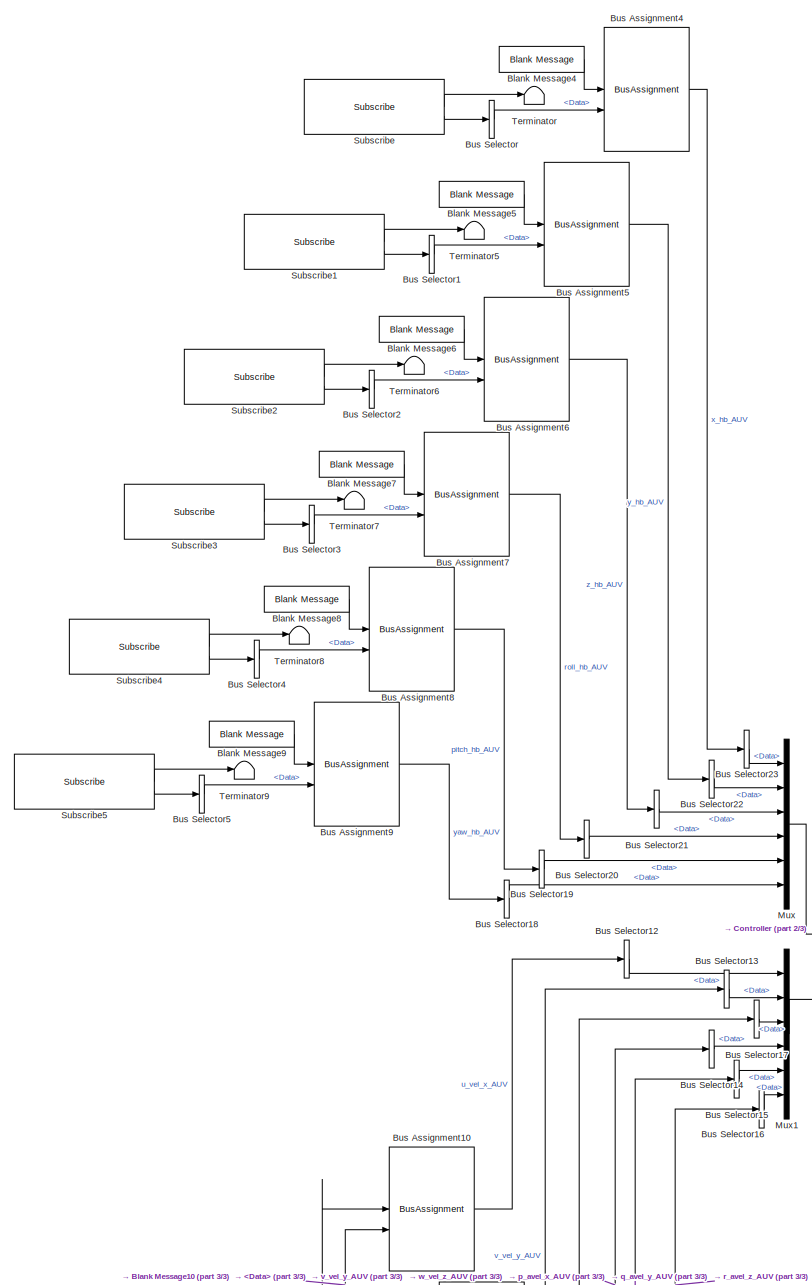
[diagram: root canvas - part 1/3, top left region]
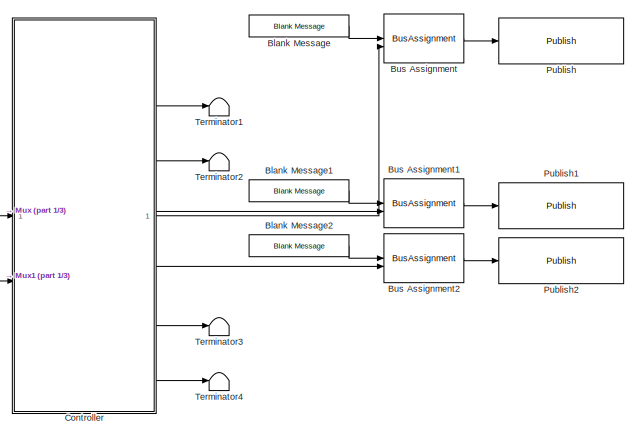
[diagram: root canvas - part 2/3, middle right region]
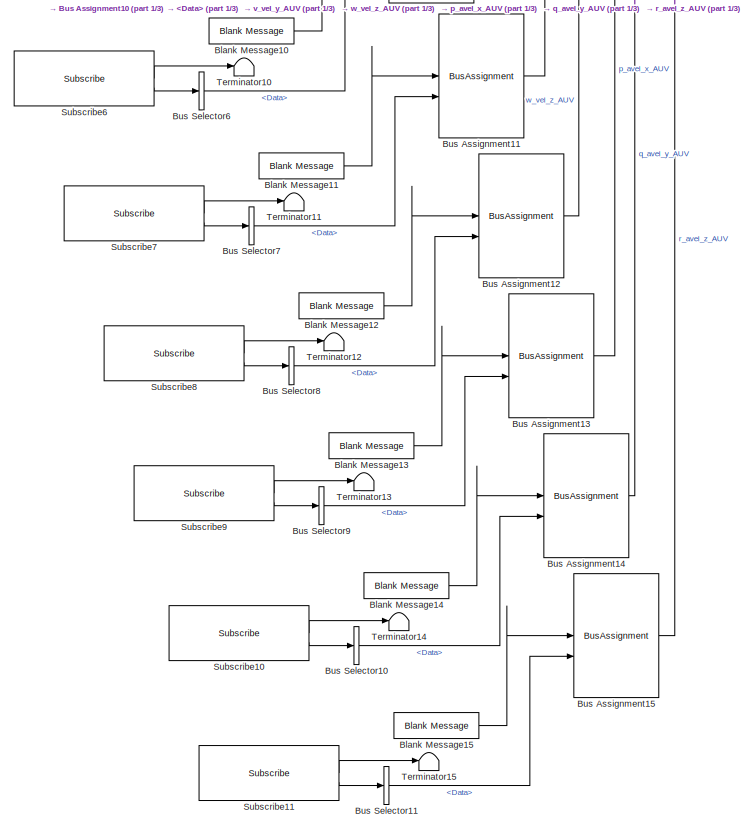
[diagram: root canvas - part 3/3, bottom left region]
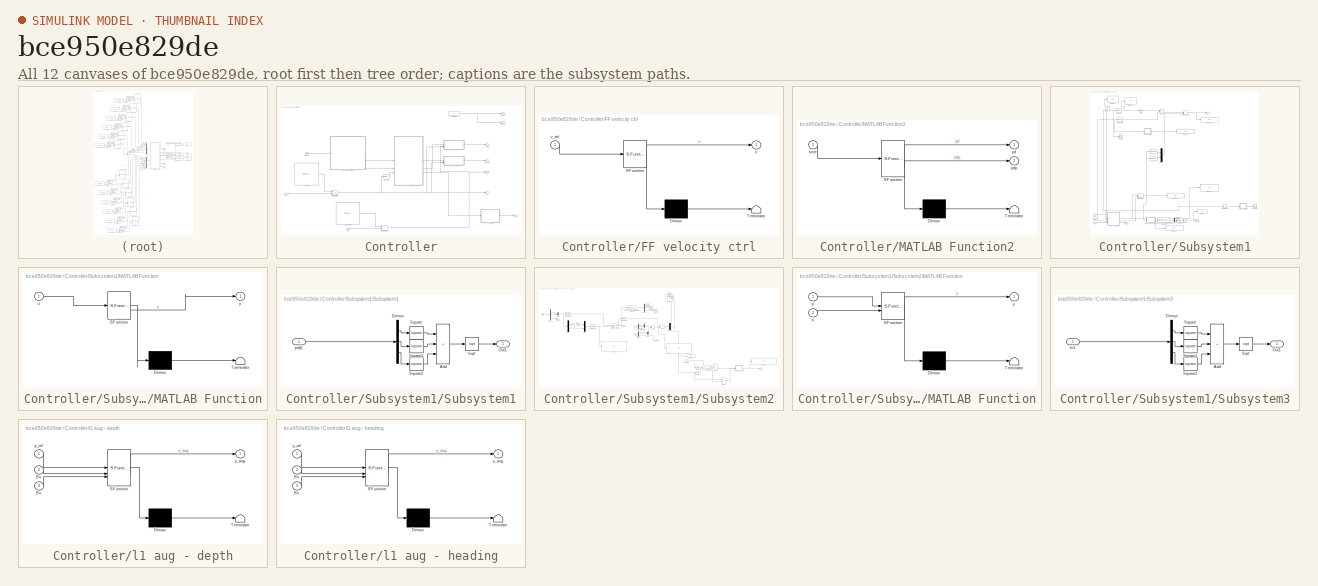
[diagram: thumbnail index - all 12 canvases of the model, root first then tree order]
MODEL slx_bce950e829de
KIND model
CONFIG AbsTol = auto
CONFIG EnableMultiTasking = off
CONFIG FixedStep = 0.05
CONFIG MaxStep = auto
CONFIG MinStep = auto
CONFIG RelTol = 1e-3
CONFIG SampleTimeConstraint = Unconstrained
CONFIG SolverName = FixedStepAuto
CONFIG StartTime = 0.0
CONFIG StopFcn = save('testdata')
CONFIG StopTime = Tf
BLOCK [Reference] Blank Message  REF=robotlib/Blank Message
  LibrarySourceBlock = roslib/ROS/Blank Message
  SourceBlock = robotlib/Blank Message
  SourceType = ROS Blank Message
BLOCK [Reference] Blank Message1  REF=robotlib/Blank Message
  LibrarySourceBlock = roslib/ROS/Blank Message
  SourceBlock = robotlib/Blank Message
  SourceType = ROS Blank Message
BLOCK [Reference] Blank Message10  REF=robotlib/Blank Message
  LibrarySourceBlock = roslib/ROS/Blank Message
  SourceBlock = robotlib/Blank Message
  SourceType = ROS Blank Message
BLOCK [Reference] Blank Message11  REF=robotlib/Blank Message
  LibrarySourceBlock = roslib/ROS/Blank Message
  SourceBlock = robotlib/Blank Message
  SourceType = ROS Blank Message
BLOCK [Reference] Blank Message12  REF=robotlib/Blank Message
  LibrarySourceBlock = roslib/ROS/Blank Message
  SourceBlock = robotlib/Blank Message
  SourceType = ROS Blank Message
BLOCK [Reference] Blank Message13  REF=robotlib/Blank Message
  LibrarySourceBlock = roslib/ROS/Blank Message
  SourceBlock = robotlib/Blank Message
  SourceType = ROS Blank Message
BLOCK [Reference] Blank Message14  REF=robotlib/Blank Message
  LibrarySourceBlock = roslib/ROS/Blank Message
  SourceBlock = robotlib/Blank Message
  SourceType = ROS Blank Message
BLOCK [Reference] Blank Message15  REF=robotlib/Blank Message
  LibrarySourceBlock = roslib/ROS/Blank Message
  SourceBlock = robotlib/Blank Message
  SourceType = ROS Blank Message
BLOCK [Reference] Blank Message2  REF=robotlib/Blank Message
  LibrarySourceBlock = roslib/ROS/Blank Message
  SourceBlock = robotlib/Blank Message
  SourceType = ROS Blank Message
BLOCK [Reference] Blank Message4  REF=robotlib/Blank Message
  LibrarySourceBlock = roslib/ROS/Blank Message
  SourceBlock = robotlib/Blank Message
  SourceType = ROS Blank Message
BLOCK [Reference] Blank Message5  REF=robotlib/Blank Message
  LibrarySourceBlock = roslib/ROS/Blank Message
  SourceBlock = robotlib/Blank Message
  SourceType = ROS Blank Message
BLOCK [Reference] Blank Message6  REF=robotlib/Blank Message
  LibrarySourceBlock = roslib/ROS/Blank Message
  SourceBlock = robotlib/Blank Message
  SourceType = ROS Blank Message
BLOCK [Reference] Blank Message7  REF=robotlib/Blank Message
  LibrarySourceBlock = roslib/ROS/Blank Message
  SourceBlock = robotlib/Blank Message
  SourceType = ROS Blank Message
BLOCK [Reference] Blank Message8  REF=robotlib/Blank Message
  LibrarySourceBlock = roslib/ROS/Blank Message
  SourceBlock = robotlib/Blank Message
  SourceType = ROS Blank Message
BLOCK [Reference] Blank Message9  REF=robotlib/Blank Message
  LibrarySourceBlock = roslib/ROS/Blank Message
  SourceBlock = robotlib/Blank Message
  SourceType = ROS Blank Message
BLOCK [BusAssignment] Bus Assignment
  AssignedSignals = Data
BLOCK [BusAssignment] Bus Assignment1
  AssignedSignals = Data
BLOCK [BusAssignment] Bus Assignment10
  AssignedSignals = Data
BLOCK [BusAssignment] Bus Assignment11
  AssignedSignals = Data
BLOCK [BusAssignment] Bus Assignment12
  AssignedSignals = Data
BLOCK [BusAssignment] Bus Assignment13
  AssignedSignals = Data
BLOCK [BusAssignment] Bus Assignment14
  AssignedSignals = Data
BLOCK [BusAssignment] Bus Assignment15
  AssignedSignals = Data
BLOCK [BusAssignment] Bus Assignment2
  AssignedSignals = Data
BLOCK [BusAssignment] Bus Assignment4
  AssignedSignals = Data
BLOCK [BusAssignment] Bus Assignment5
  AssignedSignals = Data
BLOCK [BusAssignment] Bus Assignment6
  AssignedSignals = Data
BLOCK [BusAssignment] Bus Assignment7
  AssignedSignals = Data
BLOCK [BusAssignment] Bus Assignment8
  AssignedSignals = Data
BLOCK [BusAssignment] Bus Assignment9
  AssignedSignals = Data
BLOCK [BusSelector] Bus Selector
  OutputSignals = Data
BLOCK [BusSelector] Bus Selector1
  OutputSignals = Data
BLOCK [BusSelector] Bus Selector10
  OutputSignals = Data
BLOCK [BusSelector] Bus Selector11
  OutputSignals = Data
BLOCK [BusSelector] Bus Selector12
  OutputSignals = Data
BLOCK [BusSelector] Bus Selector13
  OutputSignals = Data
BLOCK [BusSelector] Bus Selector14
  OutputSignals = Data
BLOCK [BusSelector] Bus Selector15
  OutputSignals = Data
BLOCK [BusSelector] Bus Selector16
  OutputSignals = Data
BLOCK [BusSelector] Bus Selector17
  OutputSignals = Data
BLOCK [BusSelector] Bus Selector18
  OutputSignals = Data
BLOCK [BusSelector] Bus Selector19
  OutputSignals = Data
BLOCK [BusSelector] Bus Selector2
  OutputSignals = Data
BLOCK [BusSelector] Bus Selector20
  OutputSignals = Data
BLOCK [BusSelector] Bus Selector21
  OutputSignals = Data
BLOCK [BusSelector] Bus Selector22
  OutputSignals = Data
BLOCK [BusSelector] Bus Selector23
  OutputSignals = Data
BLOCK [BusSelector] Bus Selector3
  OutputSignals = Data
BLOCK [BusSelector] Bus Selector4
  OutputSignals = Data
BLOCK [BusSelector] Bus Selector5
  OutputSignals = Data
BLOCK [BusSelector] Bus Selector6
  OutputSignals = Data
BLOCK [BusSelector] Bus Selector7
  OutputSignals = Data
BLOCK [BusSelector] Bus Selector8
  OutputSignals = Data
BLOCK [BusSelector] Bus Selector9
  OutputSignals = Data
BLOCK [SubSystem] Controller
BLOCK [Inport] Controller/Bv
  Port = 2
BLOCK [Inport] Controller/Bx
BLOCK [Clock] Controller/Clock
BLOCK [Constant] Controller/Constant
  Value = [-1 0 0 0 0 0; 0 -1 0 0 0 0; 0 0 1 0 0 0; 0 0 0 1 0 0; 0 0 0 0 1 0; 0 0 0 0 0 1]
BLOCK [Constant] Controller/Constant1
  Value = 0
BLOCK [Constant] Controller/Constant2
  Value = [-1 0 0 0 0 0; 0 -1 0 0 0 0; 0 0 1 0 0 0; 0 0 0 1 0 0; 0 0 0 0 1 0; 0 0 0 0 0 1]
BLOCK [SubSystem] Controller/FF velocity ctrl
  ErrorFcn = Stateflow.Translate.translate
  PermitHierarchicalResolution = ExplicitOnly
  SFBlockType = MATLAB Function
  TreatAsAtomicUnit = on
BLOCK [Demux] Controller/FF velocity ctrl/ Demux 
  Outputs = 1
BLOCK [S-Function] Controller/FF velocity ctrl/ SFunction 
  EnableBusSupport = on
  FunctionName = sf_sfun
  PortCounts = [1 2]
  SFcnIsStateOwnerBlock = off
  SFunctionDeploymentMode = off
  Tag = Stateflow S-Function 78
BLOCK [Terminator] Controller/FF velocity ctrl/ Terminator 
BLOCK [Outport] Controller/FF velocity ctrl/n
BLOCK [Inport] Controller/FF velocity ctrl/v_ref
BLOCK [SubSystem] Controller/MATLAB Function2
  ErrorFcn = Stateflow.Translate.translate
  PermitHierarchicalResolution = ExplicitOnly
  SFBlockType = MATLAB Function
  TreatAsAtomicUnit = on
BLOCK [Demux] Controller/MATLAB Function2/ Demux 
  Outputs = 1
BLOCK [S-Function] Controller/MATLAB Function2/ SFunction 
  EnableBusSupport = on
  FunctionName = sf_sfun
  Parameters = Cp,Cp_prime,Tf
  PortCounts = [1 3]
  SFcnIsStateOwnerBlock = off
  SFunctionDeploymentMode = off
  Tag = Stateflow S-Function 5
BLOCK [Terminator] Controller/MATLAB Function2/ Terminator 
BLOCK [Outport] Controller/MATLAB Function2/pd
BLOCK [Outport] Controller/MATLAB Function2/pdp
  Port = 2
BLOCK [Inport] Controller/MATLAB Function2/time
BLOCK [Product] Controller/Matrix Multiply
  Multiplication = Matrix(*)
BLOCK [Product] Controller/Matrix Multiply1
  Multiplication = Matrix(*)
BLOCK [Selector] Controller/Selector1
  IndexOptions = Index vector (dialog)
  Indices = [1 2 3]
  InputPortWidth = 6
  OutputSizes = 1
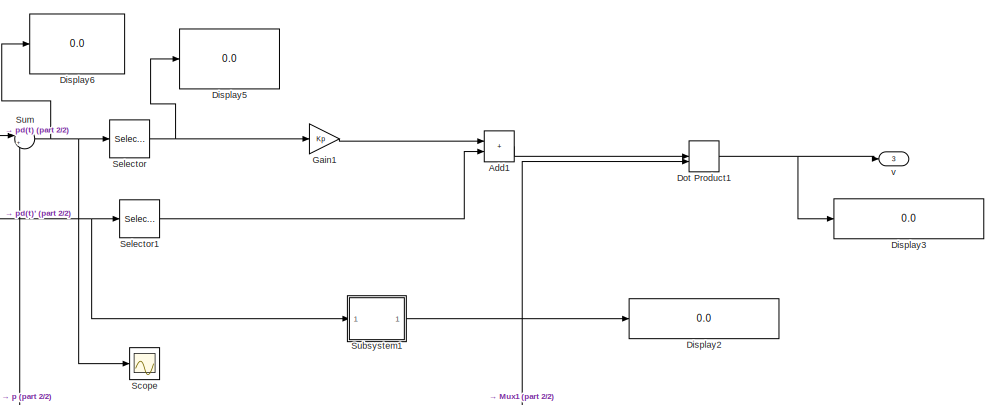
[diagram: Controller/Subsystem1 - part 1/2, top center region]
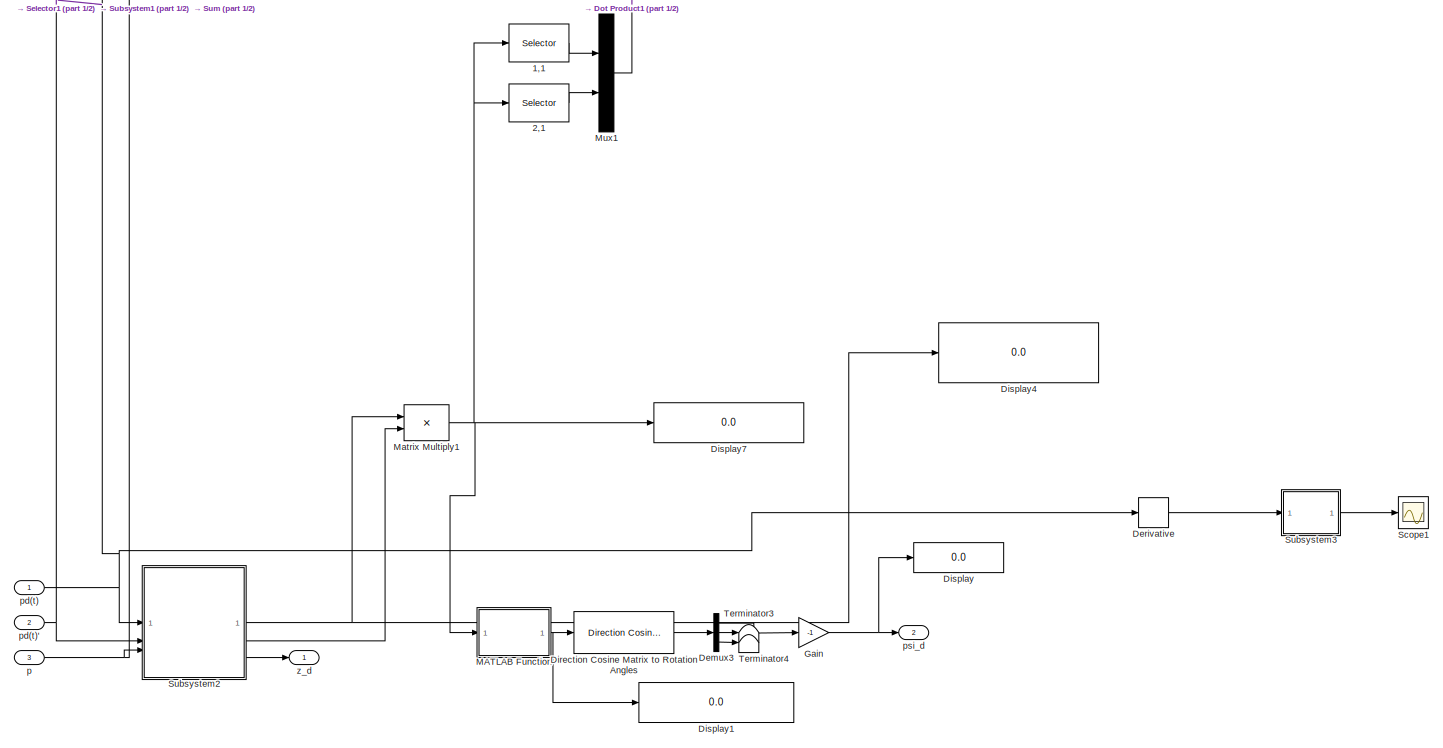
[diagram: Controller/Subsystem1 - part 2/2, full width, bottom band]
BLOCK [SubSystem] Controller/Subsystem1
BLOCK [Selector] Controller/Subsystem1/1,1
  IndexOptions = Index vector (dialog),Index vector (dialog)
  Indices = 1,1
  InputPortWidth = 3
  NumberOfDimensions = 2
  OutputSizes = 1,1
BLOCK [Selector] Controller/Subsystem1/2,1
  IndexOptions = Index vector (dialog),Index vector (dialog)
  Indices = 2,1
  InputPortWidth = 3
  NumberOfDimensions = 2
  OutputSizes = 1,1
BLOCK [Sum] Controller/Subsystem1/Add1
  IconShape = rectangular
BLOCK [Demux] Controller/Subsystem1/Demux3
  Outputs = 3
BLOCK [Derivative] Controller/Subsystem1/Derivative
BLOCK [Reference] Controller/Subsystem1/Direction Cosine Matrix to Rotation Angles  REF=sharedtransform/Direction Cosine Matrix
to Rotation Angles
  AttributesFormatString = Rotation Order: %<rotationOrder>
  LibrarySourceBlock = aerolibtransform2/Direction Cosine Matrix\nto Rotation Angles
  SourceBlock = sharedtransform/Direction Cosine Matrix\nto Rotation Angles
  SourceType = DCM2Ang
BLOCK [Display] Controller/Subsystem1/Display
  Decimation = 1
BLOCK [Display] Controller/Subsystem1/Display1
  Decimation = 1
BLOCK [Display] Controller/Subsystem1/Display2
  Decimation = 1
BLOCK [Display] Controller/Subsystem1/Display3
  Decimation = 1
BLOCK [Display] Controller/Subsystem1/Display4
  Decimation = 1
BLOCK [Display] Controller/Subsystem1/Display5
  Decimation = 1
BLOCK [Display] Controller/Subsystem1/Display6
  Decimation = 1
BLOCK [Display] Controller/Subsystem1/Display7
  Decimation = 1
BLOCK [DotProduct] Controller/Subsystem1/Dot Product1
  OutDataTypeStr = Inherit: Inherit via internal rule
BLOCK [Gain] Controller/Subsystem1/Gain
  Gain = -1
BLOCK [Gain] Controller/Subsystem1/Gain1
  Gain = Kp
BLOCK [SubSystem] Controller/Subsystem1/MATLAB Function
  ErrorFcn = Stateflow.Translate.translate
  LibrarySourceBlock = simulink/User-Defined\nFunctions/MATLAB Function
  PermitHierarchicalResolution = ExplicitOnly
  SFBlockType = MATLAB Function
  TreatAsAtomicUnit = on
BLOCK [Demux] Controller/Subsystem1/MATLAB Function/ Demux 
  Outputs = 1
BLOCK [S-Function] Controller/Subsystem1/MATLAB Function/ SFunction 
  EnableBusSupport = on
  FunctionName = sf_sfun
  PortCounts = [1 2]
  SFcnIsStateOwnerBlock = off
  SFunctionDeploymentMode = off
  Tag = Stateflow S-Function 2
BLOCK [Terminator] Controller/Subsystem1/MATLAB Function/ Terminator 
BLOCK [Inport] Controller/Subsystem1/MATLAB Function/u
BLOCK [Outport] Controller/Subsystem1/MATLAB Function/y
BLOCK [Product] Controller/Subsystem1/Matrix Multiply1
  Multiplication = Matrix(*)
BLOCK [Mux] Controller/Subsystem1/Mux1
  DisplayOption = bar
  Inputs = 2
BLOCK [Scope] Controller/Subsystem1/Scope
  Floating = off
  NumInputPorts = 1
  ScopeSpecificationString = Simulink.scopes.TimeScopeBlockCfg('CurrentConfiguration', extmgr.ConfigurationSet(extmgr.Configuration('Core','General UI',true),extmgr.Configuration('Core','Source UI',true),extmgr.Configuration('Sources','WiredSimulink',true,'DataLoggingVariableName','ScopeData1'),extmgr.Configuration('Visuals','Time Domain',true,'SerializedDisplays',{struct('MinYLimReal','-45.28038','MaxYLimReal','27.25608','YL...<+1409ch>
BLOCK [Scope] Controller/Subsystem1/Scope1
  Floating = off
  NumInputPorts = 1
  ScopeSpecificationString = Simulink.scopes.TimeScopeBlockCfg('CurrentConfiguration', extmgr.ConfigurationSet(extmgr.Configuration('Core','General UI',true),extmgr.Configuration('Core','Source UI',true),extmgr.Configuration('Sources','WiredSimulink',true,'DataLoggingVariableName','ScopeData3'),extmgr.Configuration('Visuals','Time Domain',true,'SerializedDisplays',{struct('MinYLimReal','-0.625','MaxYLimReal','5.625','YLabelRe...<+1386ch>
BLOCK [Selector] Controller/Subsystem1/Selector
  IndexOptions = Index vector (dialog)
  Indices = [1 2]
  InputPortWidth = 3
  OutputSizes = 1
BLOCK [Selector] Controller/Subsystem1/Selector1
  IndexOptions = Index vector (dialog)
  Indices = [1 2]
  InputPortWidth = 3
  OutputSizes = 1
BLOCK [SubSystem] Controller/Subsystem1/Subsystem1
BLOCK [Sum] Controller/Subsystem1/Subsystem1/Add
  IconShape = rectangular
  Inputs = +++
BLOCK [Demux] Controller/Subsystem1/Subsystem1/Demux
  Outputs = 3
BLOCK [Outport] Controller/Subsystem1/Subsystem1/Out1
BLOCK [Sqrt] Controller/Subsystem1/Subsystem1/Sqrt
BLOCK [Math] Controller/Subsystem1/Subsystem1/Square
  Operator = square
BLOCK [Math] Controller/Subsystem1/Subsystem1/Square1
  Operator = square
BLOCK [Math] Controller/Subsystem1/Subsystem1/Square2
  Operator = square
BLOCK [Inport] Controller/Subsystem1/Subsystem1/pd(t)'
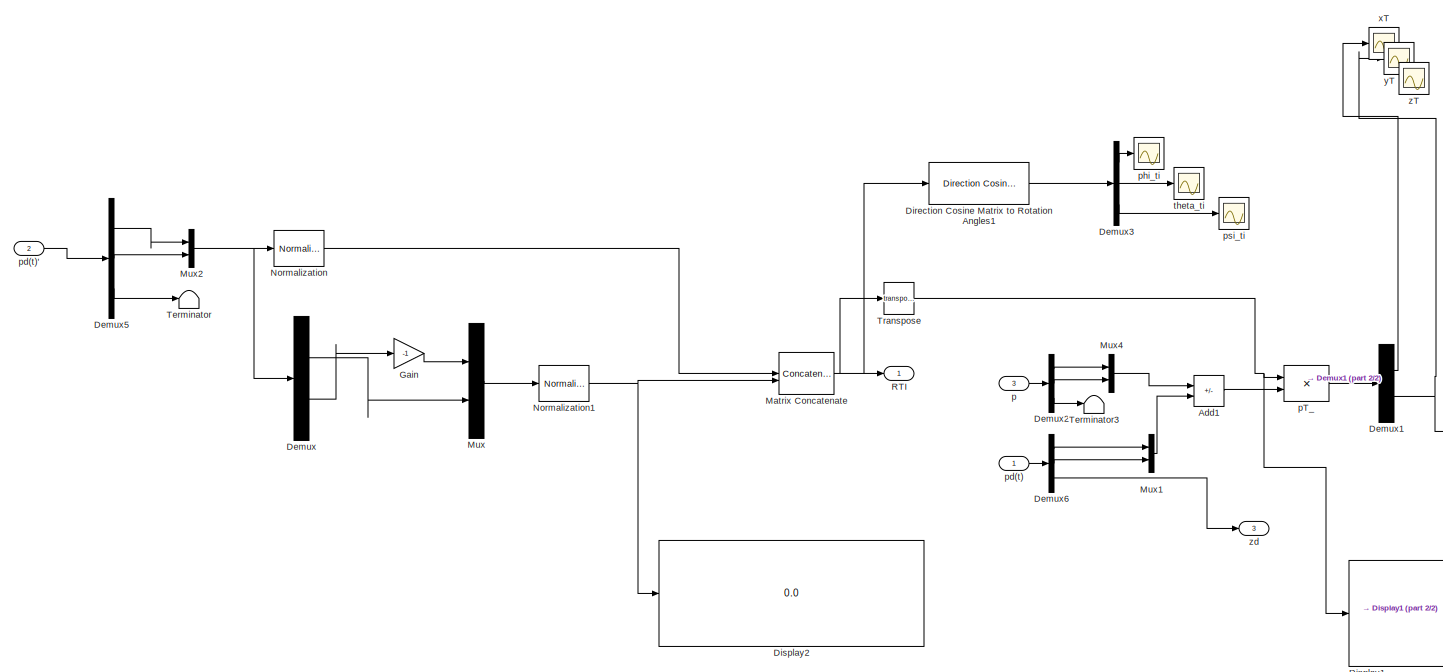
[diagram: Controller/Subsystem1/Subsystem2 - part 1/2, middle left region]
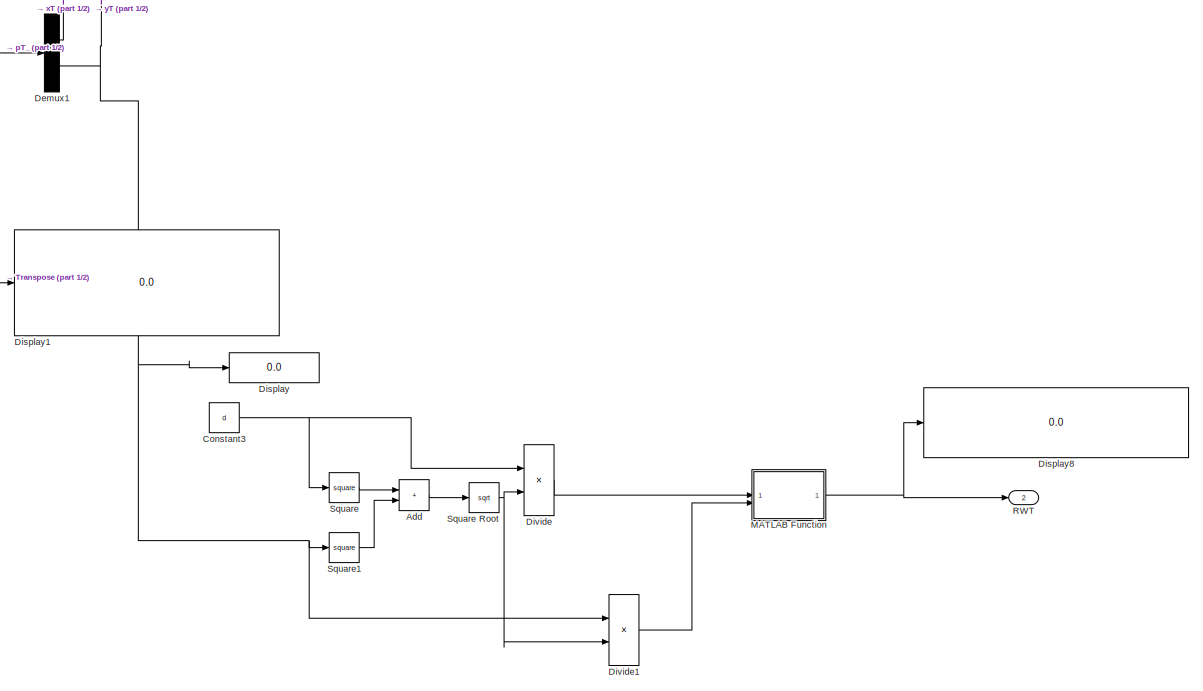
[diagram: Controller/Subsystem1/Subsystem2 - part 2/2, middle right region]
BLOCK [SubSystem] Controller/Subsystem1/Subsystem2
BLOCK [Sum] Controller/Subsystem1/Subsystem2/Add
  IconShape = rectangular
BLOCK [Sum] Controller/Subsystem1/Subsystem2/Add1
  IconShape = rectangular
  Inputs = +-
BLOCK [Constant] Controller/Subsystem1/Subsystem2/Constant3
  Value = d
BLOCK [Demux] Controller/Subsystem1/Subsystem2/Demux
  Outputs = 2
BLOCK [Demux] Controller/Subsystem1/Subsystem2/Demux1
  Outputs = 2
BLOCK [Demux] Controller/Subsystem1/Subsystem2/Demux2
  Outputs = 3
BLOCK [Demux] Controller/Subsystem1/Subsystem2/Demux3
  Commented = on
  Outputs = 3
BLOCK [Demux] Controller/Subsystem1/Subsystem2/Demux5
  Outputs = 3
BLOCK [Demux] Controller/Subsystem1/Subsystem2/Demux6
  Outputs = 3
BLOCK [Reference] Controller/Subsystem1/Subsystem2/Direction Cosine Matrix to Rotation Angles1  REF=sharedtransform/Direction Cosine Matrix
to Rotation Angles
  AttributesFormatString = Rotation Order: %<rotationOrder>
  Commented = on
  SourceBlock = sharedtransform/Direction Cosine Matrix\nto Rotation Angles
  SourceType = DCM2Ang
BLOCK [Display] Controller/Subsystem1/Subsystem2/Display
  Decimation = 1
BLOCK [Display] Controller/Subsystem1/Subsystem2/Display1
  Decimation = 1
BLOCK [Display] Controller/Subsystem1/Subsystem2/Display2
  Decimation = 1
BLOCK [Display] Controller/Subsystem1/Subsystem2/Display8
  Decimation = 1
BLOCK [Product] Controller/Subsystem1/Subsystem2/Divide
  Inputs = */
BLOCK [Product] Controller/Subsystem1/Subsystem2/Divide1
  Inputs = */
BLOCK [Gain] Controller/Subsystem1/Subsystem2/Gain
  Gain = -1
BLOCK [SubSystem] Controller/Subsystem1/Subsystem2/MATLAB Function
  ErrorFcn = Stateflow.Translate.translate
  PermitHierarchicalResolution = ExplicitOnly
  SFBlockType = MATLAB Function
  TreatAsAtomicUnit = on
BLOCK [Demux] Controller/Subsystem1/Subsystem2/MATLAB Function/ Demux 
  Outputs = 1
BLOCK [S-Function] Controller/Subsystem1/Subsystem2/MATLAB Function/ SFunction 
  EnableBusSupport = on
  FunctionName = sf_sfun
  PortCounts = [2 2]
  SFcnIsStateOwnerBlock = off
  SFunctionDeploymentMode = off
  Tag = Stateflow S-Function 9
BLOCK [Terminator] Controller/Subsystem1/Subsystem2/MATLAB Function/ Terminator 
BLOCK [Inport] Controller/Subsystem1/Subsystem2/MATLAB Function/a
BLOCK [Inport] Controller/Subsystem1/Subsystem2/MATLAB Function/b
  Port = 2
BLOCK [Outport] Controller/Subsystem1/Subsystem2/MATLAB Function/y
BLOCK [Concatenate] Controller/Subsystem1/Subsystem2/Matrix Concatenate
  ConcatenateDimension = 2
  Mode = Multidimensional array
BLOCK [Mux] Controller/Subsystem1/Subsystem2/Mux
  DisplayOption = bar
  Inputs = 2
BLOCK [Mux] Controller/Subsystem1/Subsystem2/Mux1
  DisplayOption = bar
  Inputs = 2
BLOCK [Mux] Controller/Subsystem1/Subsystem2/Mux2
  DisplayOption = bar
  Inputs = 2
BLOCK [Mux] Controller/Subsystem1/Subsystem2/Mux4
  DisplayOption = bar
  Inputs = 2
BLOCK [Reference] Controller/Subsystem1/Subsystem2/Normalization  REF=dspmathops/Normalization
  SourceBlock = dspmathops/Normalization
  SourceType = Normalization
BLOCK [Reference] Controller/Subsystem1/Subsystem2/Normalization1  REF=dspmathops/Normalization
  SourceBlock = dspmathops/Normalization
  SourceType = Normalization
BLOCK [Outport] Controller/Subsystem1/Subsystem2/RTI
BLOCK [Outport] Controller/Subsystem1/Subsystem2/RWT
  Port = 2
BLOCK [Math] Controller/Subsystem1/Subsystem2/Square
  Operator = square
BLOCK [Sqrt] Controller/Subsystem1/Subsystem2/Square Root
BLOCK [Math] Controller/Subsystem1/Subsystem2/Square1
  Operator = square
BLOCK [Terminator] Controller/Subsystem1/Subsystem2/Terminator
BLOCK [Terminator] Controller/Subsystem1/Subsystem2/Terminator3
BLOCK [Math] Controller/Subsystem1/Subsystem2/Transpose
  Operator = transpose
BLOCK [Inport] Controller/Subsystem1/Subsystem2/p
  Port = 3
BLOCK [Product] Controller/Subsystem1/Subsystem2/pT_
  Multiplication = Matrix(*)
BLOCK [Inport] Controller/Subsystem1/Subsystem2/pd(t)
BLOCK [Inport] Controller/Subsystem1/Subsystem2/pd(t)'
  Port = 2
BLOCK [Scope] Controller/Subsystem1/Subsystem2/phi_ti
  Commented = on
  Floating = off
  NumInputPorts = 1
  ScopeSpecificationString = Simulink.scopes.TimeScopeBlockCfg('CurrentConfiguration', extmgr.ConfigurationSet(extmgr.Configuration('Core','General UI',true),extmgr.Configuration('Core','Source UI',true),extmgr.Configuration('Sources','WiredSimulink',true,'DataLoggingVariableName','phi_ti','DataLogging',true,'DataLoggingSaveFormat','StructureWithTime'),extmgr.Configuration('Visuals','Time Domain',true,'SerializedDisplays',{st...<+1426ch>
BLOCK [Scope] Controller/Subsystem1/Subsystem2/psi_ti
  Commented = on
  Floating = off
  NumInputPorts = 1
  ScopeSpecificationString = Simulink.scopes.TimeScopeBlockCfg('CurrentConfiguration', extmgr.ConfigurationSet(extmgr.Configuration('Core','General UI',true),extmgr.Configuration('Core','Source UI',true),extmgr.Configuration('Sources','WiredSimulink',true,'DataLoggingVariableName','psi_ti','DataLogging',true,'DataLoggingSaveFormat','StructureWithTime'),extmgr.Configuration('Visuals','Time Domain',true,'SerializedDisplays',{st...<+1426ch>
BLOCK [Scope] Controller/Subsystem1/Subsystem2/theta_ti
  Commented = on
  Floating = off
  NumInputPorts = 1
  ScopeSpecificationString = Simulink.scopes.TimeScopeBlockCfg('CurrentConfiguration', extmgr.ConfigurationSet(extmgr.Configuration('Core','General UI',true),extmgr.Configuration('Core','Source UI',true),extmgr.Configuration('Sources','WiredSimulink',true,'DataLoggingVariableName','theta_ti','DataLogging',true,'DataLoggingSaveFormat','StructureWithTime'),extmgr.Configuration('Visuals','Time Domain',true,'SerializedDisplays',{...<+1428ch>
BLOCK [Scope] Controller/Subsystem1/Subsystem2/xT
  Floating = off
  NumInputPorts = 1
  ScopeSpecificationString = Simulink.scopes.TimeScopeBlockCfg('CurrentConfiguration', extmgr.ConfigurationSet(extmgr.Configuration('Core','General UI',true),extmgr.Configuration('Core','Source UI',true),extmgr.Configuration('Sources','WiredSimulink',true,'DataLoggingVariableName','xT','DataLogging',true,'DataLoggingSaveFormat','StructureWithTime'),extmgr.Configuration('Visuals','Time Domain',true,'SerializedDisplays',{struct...<+1452ch>
BLOCK [Scope] Controller/Subsystem1/Subsystem2/yT
  Floating = off
  NumInputPorts = 1
  ScopeSpecificationString = Simulink.scopes.TimeScopeBlockCfg('CurrentConfiguration', extmgr.ConfigurationSet(extmgr.Configuration('Core','General UI',true),extmgr.Configuration('Core','Source UI',true),extmgr.Configuration('Sources','WiredSimulink',true,'DataLoggingVariableName','yT','DataLogging',true,'DataLoggingSaveFormat','StructureWithTime'),extmgr.Configuration('Visuals','Time Domain',true,'SerializedDisplays',{struct...<+1488ch>
BLOCK [Scope] Controller/Subsystem1/Subsystem2/zT
  Commented = on
  Floating = off
  NumInputPorts = 1
  ScopeSpecificationString = Simulink.scopes.TimeScopeBlockCfg('CurrentConfiguration', extmgr.ConfigurationSet(extmgr.Configuration('Core','General UI',true),extmgr.Configuration('Core','Source UI',true),extmgr.Configuration('Sources','WiredSimulink',true,'DataLoggingVariableName','zT','DataLogging',true,'DataLoggingSaveFormat','StructureWithTime'),extmgr.Configuration('Visuals','Time Domain',true,'SerializedDisplays',{struct...<+1459ch>
BLOCK [Outport] Controller/Subsystem1/Subsystem2/zd
  Port = 3
BLOCK [SubSystem] Controller/Subsystem1/Subsystem3
BLOCK [Sum] Controller/Subsystem1/Subsystem3/Add
  IconShape = rectangular
  Inputs = +++
BLOCK [Demux] Controller/Subsystem1/Subsystem3/Demux
  Outputs = 3
BLOCK [Inport] Controller/Subsystem1/Subsystem3/In1
BLOCK [Outport] Controller/Subsystem1/Subsystem3/Out1
BLOCK [Sqrt] Controller/Subsystem1/Subsystem3/Sqrt
BLOCK [Math] Controller/Subsystem1/Subsystem3/Square
  Operator = square
BLOCK [Math] Controller/Subsystem1/Subsystem3/Square1
  Operator = square
BLOCK [Math] Controller/Subsystem1/Subsystem3/Square2
  Operator = square
BLOCK [Sum] Controller/Subsystem1/Sum
  Inputs = |+-
BLOCK [Terminator] Controller/Subsystem1/Terminator3
BLOCK [Terminator] Controller/Subsystem1/Terminator4
BLOCK [Inport] Controller/Subsystem1/p
  Port = 3
BLOCK [Inport] Controller/Subsystem1/pd(t)
BLOCK [Inport] Controller/Subsystem1/pd(t)'
  Port = 2
BLOCK [Outport] Controller/Subsystem1/psi_d
  Port = 2
BLOCK [Outport] Controller/Subsystem1/v
  Port = 3
BLOCK [Outport] Controller/Subsystem1/z_d
BLOCK [Outport] Controller/bv
  Port = 6
BLOCK [Outport] Controller/bx
  Port = 7
BLOCK [Outport] Controller/dLCG
  Port = 2
BLOCK [Outport] Controller/dmass
  Port = 3
BLOCK [SubSystem] Controller/l1 aug - depth
  ErrorFcn = Stateflow.Translate.translate
  PermitHierarchicalResolution = ExplicitOnly
  SFBlockType = MATLAB Function
  TreatAsAtomicUnit = on
BLOCK [Demux] Controller/l1 aug - depth/ Demux 
  Outputs = 1
BLOCK [S-Function] Controller/l1 aug - depth/ SFunction 
  EnableBusSupport = on
  FunctionName = sf_sfun
  Parameters = L1,Ts,adap
  PortCounts = [3 2]
  SFcnIsStateOwnerBlock = off
  SFunctionDeploymentMode = off
  Tag = Stateflow S-Function 229
BLOCK [Terminator] Controller/l1 aug - depth/ Terminator 
BLOCK [Inport] Controller/l1 aug - depth/Bv
  Port = 2
BLOCK [Inport] Controller/l1 aug - depth/Bx
  Port = 3
BLOCK [Outport] Controller/l1 aug - depth/y_aug
BLOCK [Inport] Controller/l1 aug - depth/y_ref
BLOCK [SubSystem] Controller/l1 aug - heading
  ErrorFcn = Stateflow.Translate.translate
  PermitHierarchicalResolution = ExplicitOnly
  SFBlockType = MATLAB Function
  TreatAsAtomicUnit = on
BLOCK [Demux] Controller/l1 aug - heading/ Demux 
  Outputs = 1
BLOCK [S-Function] Controller/l1 aug - heading/ SFunction 
  EnableBusSupport = on
  FunctionName = sf_sfun
  Parameters = L1,Ts,adap
  PortCounts = [3 2]
  SFcnIsStateOwnerBlock = off
  SFunctionDeploymentMode = off
  Tag = Stateflow S-Function 80
BLOCK [Terminator] Controller/l1 aug - heading/ Terminator 
BLOCK [Inport] Controller/l1 aug - heading/Bv
  Port = 2
BLOCK [Inport] Controller/l1 aug - heading/Bx
  Port = 3
BLOCK [Outport] Controller/l1 aug - heading/y_aug
BLOCK [Inport] Controller/l1 aug - heading/y_ref
BLOCK [Outport] Controller/n
BLOCK [Outport] Controller/psi_ref
  Port = 5
BLOCK [Outport] Controller/z_ref
  Port = 4
BLOCK [Mux] Mux
  DisplayOption = bar
  Inputs = 6
BLOCK [Mux] Mux1
  DisplayOption = bar
  Inputs = 6
BLOCK [Reference] Publish  REF=robotlib/Publish
  LibrarySourceBlock = roslib/ROS/Publish
  SourceBlock = robotlib/Publish
  SourceType = ROS Publish
BLOCK [Reference] Publish1  REF=robotlib/Publish
  LibrarySourceBlock = roslib/ROS/Publish
  SourceBlock = robotlib/Publish
  SourceType = ROS Publish
BLOCK [Reference] Publish2  REF=robotlib/Publish
  LibrarySourceBlock = roslib/ROS/Publish
  SourceBlock = robotlib/Publish
  SourceType = ROS Publish
BLOCK [Reference] Subscribe  REF=robotlib/Subscribe
  LibrarySourceBlock = roslib/ROS/Subscribe
  SourceBlock = robotlib/Subscribe
  SourceType = ROS Subscribe
BLOCK [Reference] Subscribe1  REF=robotlib/Subscribe
  LibrarySourceBlock = roslib/ROS/Subscribe
  SourceBlock = robotlib/Subscribe
  SourceType = ROS Subscribe
BLOCK [Reference] Subscribe10  REF=robotlib/Subscribe
  LibrarySourceBlock = roslib/ROS/Subscribe
  SourceBlock = robotlib/Subscribe
  SourceType = ROS Subscribe
BLOCK [Reference] Subscribe11  REF=robotlib/Subscribe
  LibrarySourceBlock = roslib/ROS/Subscribe
  SourceBlock = robotlib/Subscribe
  SourceType = ROS Subscribe
BLOCK [Reference] Subscribe2  REF=robotlib/Subscribe
  LibrarySourceBlock = roslib/ROS/Subscribe
  SourceBlock = robotlib/Subscribe
  SourceType = ROS Subscribe
BLOCK [Reference] Subscribe3  REF=robotlib/Subscribe
  LibrarySourceBlock = roslib/ROS/Subscribe
  SourceBlock = robotlib/Subscribe
  SourceType = ROS Subscribe
BLOCK [Reference] Subscribe4  REF=robotlib/Subscribe
  LibrarySourceBlock = roslib/ROS/Subscribe
  SourceBlock = robotlib/Subscribe
  SourceType = ROS Subscribe
BLOCK [Reference] Subscribe5  REF=robotlib/Subscribe
  LibrarySourceBlock = roslib/ROS/Subscribe
  SourceBlock = robotlib/Subscribe
  SourceType = ROS Subscribe
BLOCK [Reference] Subscribe6  REF=robotlib/Subscribe
  LibrarySourceBlock = roslib/ROS/Subscribe
  SourceBlock = robotlib/Subscribe
  SourceType = ROS Subscribe
BLOCK [Reference] Subscribe7  REF=robotlib/Subscribe
  LibrarySourceBlock = roslib/ROS/Subscribe
  SourceBlock = robotlib/Subscribe
  SourceType = ROS Subscribe
BLOCK [Reference] Subscribe8  REF=robotlib/Subscribe
  LibrarySourceBlock = roslib/ROS/Subscribe
  SourceBlock = robotlib/Subscribe
  SourceType = ROS Subscribe
BLOCK [Reference] Subscribe9  REF=robotlib/Subscribe
  LibrarySourceBlock = roslib/ROS/Subscribe
  SourceBlock = robotlib/Subscribe
  SourceType = ROS Subscribe
BLOCK [Terminator] Terminator
BLOCK [Terminator] Terminator1
BLOCK [Terminator] Terminator10
BLOCK [Terminator] Terminator11
BLOCK [Terminator] Terminator12
BLOCK [Terminator] Terminator13
BLOCK [Terminator] Terminator14
BLOCK [Terminator] Terminator15
BLOCK [Terminator] Terminator2
BLOCK [Terminator] Terminator3
BLOCK [Terminator] Terminator4
BLOCK [Terminator] Terminator5
BLOCK [Terminator] Terminator6
BLOCK [Terminator] Terminator7
BLOCK [Terminator] Terminator8
BLOCK [Terminator] Terminator9
LINE Blank Message10:1 -> Bus Assignment10:1
LINE Blank Message11:1 -> Bus Assignment11:1
LINE Blank Message12:1 -> Bus Assignment12:1
LINE Blank Message13:1 -> Bus Assignment13:1
LINE Blank Message14:1 -> Bus Assignment14:1
LINE Blank Message15:1 -> Bus Assignment15:1
LINE Blank Message1:1 -> Bus Assignment1:1
LINE Blank Message2:1 -> Bus Assignment2:1
LINE Blank Message4:1 -> Bus Assignment4:1
LINE Blank Message5:1 -> Bus Assignment5:1
LINE Blank Message6:1 -> Bus Assignment6:1
LINE Blank Message7:1 -> Bus Assignment7:1
LINE Blank Message8:1 -> Bus Assignment8:1
LINE Blank Message9:1 -> Bus Assignment9:1
LINE Blank Message:1 -> Bus Assignment:1
LINE Bus Assignment10:1 -> Bus Selector12:1
LINE Bus Assignment11:1 -> Bus Selector13:1
LINE Bus Assignment12:1 -> Bus Selector17:1
LINE Bus Assignment13:1 -> Bus Selector14:1
LINE Bus Assignment14:1 -> Bus Selector15:1
LINE Bus Assignment15:1 -> Bus Selector16:1
LINE Bus Assignment1:1 -> Publish1:1
LINE Bus Assignment2:1 -> Publish2:1
LINE Bus Assignment4:1 -> Bus Selector23:1
LINE Bus Assignment5:1 -> Bus Selector22:1
LINE Bus Assignment6:1 -> Bus Selector21:1
LINE Bus Assignment7:1 -> Bus Selector20:1
LINE Bus Assignment8:1 -> Bus Selector19:1
LINE Bus Assignment9:1 -> Bus Selector18:1
LINE Bus Assignment:1 -> Publish:1
LINE Bus Selector10:1 -> Bus Assignment14:2
LINE Bus Selector11:1 -> Bus Assignment15:2
LINE Bus Selector12:1 -> Mux1:1
LINE Bus Selector13:1 -> Mux1:2
LINE Bus Selector14:1 -> Mux1:4
LINE Bus Selector15:1 -> Mux1:5
LINE Bus Selector16:1 -> Mux1:6
LINE Bus Selector17:1 -> Mux1:3
LINE Bus Selector18:1 -> Mux:6
LINE Bus Selector19:1 -> Mux:5
LINE Bus Selector1:1 -> Bus Assignment5:2
LINE Bus Selector20:1 -> Mux:4
LINE Bus Selector21:1 -> Mux:3
LINE Bus Selector22:1 -> Mux:2
LINE Bus Selector23:1 -> Mux:1
LINE Bus Selector2:1 -> Bus Assignment6:2
LINE Bus Selector3:1 -> Bus Assignment7:2
LINE Bus Selector4:1 -> Bus Assignment8:2
LINE Bus Selector5:1 -> Bus Assignment9:2
LINE Bus Selector6:1 -> Bus Assignment10:2
LINE Bus Selector7:1 -> Bus Assignment11:2
LINE Bus Selector8:1 -> Bus Assignment12:2
LINE Bus Selector9:1 -> Bus Assignment13:2
LINE Bus Selector:1 -> Bus Assignment4:2
LINE Controller/Bv:1 -> Controller/Matrix Multiply1:2
LINE Controller/Bx:1 -> Controller/Matrix Multiply:2
LINE Controller/Clock:1 -> Controller/MATLAB Function2:1
NET Controller/Constant1:1 -> Controller/dLCG:1, Controller/dmass:1
LINE Controller/Constant2:1 -> Controller/Matrix Multiply1:1
LINE Controller/Constant:1 -> Controller/Matrix Multiply:1
LINE Controller/FF velocity ctrl:1 -> Controller/n:1
LINE Controller/MATLAB Function2:1 -> Controller/Subsystem1:1
LINE Controller/MATLAB Function2:2 -> Controller/Subsystem1:2
NET Controller/Matrix Multiply1:1 -> Controller/bv:1, Controller/l1 aug - depth:2, Controller/l1 aug - heading:2
NET Controller/Matrix Multiply:1 -> Controller/Selector1:1, Controller/bx:1, Controller/l1 aug - depth:3, Controller/l1 aug - heading:3
LINE Controller/Selector1:1 -> Controller/Subsystem1:3
LINE Controller/Subsystem1/1,1:1 -> Controller/Subsystem1/Mux1:1
LINE Controller/Subsystem1/2,1:1 -> Controller/Subsystem1/Mux1:2
LINE Controller/Subsystem1/Add1:1 -> Controller/Subsystem1/Dot Product1:1
LINE Controller/Subsystem1/Demux3:1 -> Controller/Subsystem1/Gain:1
LINE Controller/Subsystem1/Demux3:2 -> Controller/Subsystem1/Terminator3:1
LINE Controller/Subsystem1/Demux3:3 -> Controller/Subsystem1/Terminator4:1
LINE Controller/Subsystem1/Derivative:1 -> Controller/Subsystem1/Subsystem3:1
LINE Controller/Subsystem1/Direction Cosine Matrix to Rotation Angles:1 -> Controller/Subsystem1/Demux3:1
NET Controller/Subsystem1/Dot Product1:1 -> Controller/Subsystem1/Display3:1, Controller/Subsystem1/v:1
LINE Controller/Subsystem1/Gain1:1 -> Controller/Subsystem1/Add1:1
NET Controller/Subsystem1/Gain:1 -> Controller/Subsystem1/Display:1, Controller/Subsystem1/psi_d:1
NET Controller/Subsystem1/MATLAB Function:1 -> Controller/Subsystem1/Direction Cosine Matrix to Rotation Angles:1, Controller/Subsystem1/Display1:1
NET Controller/Subsystem1/Matrix Multiply1:1 -> Controller/Subsystem1/1,1:1, Controller/Subsystem1/2,1:1, Controller/Subsystem1/Display7:1, Controller/Subsystem1/MATLAB Function:1
LINE Controller/Subsystem1/Mux1:1 -> Controller/Subsystem1/Dot Product1:2
LINE Controller/Subsystem1/Selector1:1 -> Controller/Subsystem1/Add1:2
NET Controller/Subsystem1/Selector:1 -> Controller/Subsystem1/Display5:1, Controller/Subsystem1/Gain1:1
LINE Controller/Subsystem1/Subsystem1/Add:1 -> Controller/Subsystem1/Subsystem1/Sqrt:1
LINE Controller/Subsystem1/Subsystem1/Demux:1 -> Controller/Subsystem1/Subsystem1/Square:1
LINE Controller/Subsystem1/Subsystem1/Demux:2 -> Controller/Subsystem1/Subsystem1/Square1:1
LINE Controller/Subsystem1/Subsystem1/Demux:3 -> Controller/Subsystem1/Subsystem1/Square2:1
LINE Controller/Subsystem1/Subsystem1/Sqrt:1 -> Controller/Subsystem1/Subsystem1/Out1:1
LINE Controller/Subsystem1/Subsystem1/Square1:1 -> Controller/Subsystem1/Subsystem1/Add:2
LINE Controller/Subsystem1/Subsystem1/Square2:1 -> Controller/Subsystem1/Subsystem1/Add:3
LINE Controller/Subsystem1/Subsystem1/Square:1 -> Controller/Subsystem1/Subsystem1/Add:1
LINE Controller/Subsystem1/Subsystem1/pd(t)':1 -> Controller/Subsystem1/Subsystem1/Demux:1
LINE Controller/Subsystem1/Subsystem1:1 -> Controller/Subsystem1/Display2:1
LINE Controller/Subsystem1/Subsystem2/Add1:1 -> Controller/Subsystem1/Subsystem2/pT_:2
LINE Controller/Subsystem1/Subsystem2/Add:1 -> Controller/Subsystem1/Subsystem2/Square Root:1
NET Controller/Subsystem1/Subsystem2/Constant3:1 -> Controller/Subsystem1/Subsystem2/Divide:1, Controller/Subsystem1/Subsystem2/Square:1
LINE Controller/Subsystem1/Subsystem2/Demux1:1 -> Controller/Subsystem1/Subsystem2/xT:1
NET Controller/Subsystem1/Subsystem2/Demux1:2 -> Controller/Subsystem1/Subsystem2/Display:1, Controller/Subsystem1/Subsystem2/Divide1:1, Controller/Subsystem1/Subsystem2/Square1:1, Controller/Subsystem1/Subsystem2/yT:1
LINE Controller/Subsystem1/Subsystem2/Demux2:1 -> Controller/Subsystem1/Subsystem2/Mux4:1
LINE Controller/Subsystem1/Subsystem2/Demux2:2 -> Controller/Subsystem1/Subsystem2/Mux4:2
LINE Controller/Subsystem1/Subsystem2/Demux2:3 -> Controller/Subsystem1/Subsystem2/Terminator3:1
LINE Controller/Subsystem1/Subsystem2/Demux3:1 -> Controller/Subsystem1/Subsystem2/phi_ti:1
LINE Controller/Subsystem1/Subsystem2/Demux3:2 -> Controller/Subsystem1/Subsystem2/theta_ti:1
LINE Controller/Subsystem1/Subsystem2/Demux3:3 -> Controller/Subsystem1/Subsystem2/psi_ti:1
LINE Controller/Subsystem1/Subsystem2/Demux5:1 -> Controller/Subsystem1/Subsystem2/Mux2:1
LINE Controller/Subsystem1/Subsystem2/Demux5:2 -> Controller/Subsystem1/Subsystem2/Mux2:2
LINE Controller/Subsystem1/Subsystem2/Demux5:3 -> Controller/Subsystem1/Subsystem2/Terminator:1
LINE Controller/Subsystem1/Subsystem2/Demux6:1 -> Controller/Subsystem1/Subsystem2/Mux1:1
LINE Controller/Subsystem1/Subsystem2/Demux6:2 -> Controller/Subsystem1/Subsystem2/Mux1:2
LINE Controller/Subsystem1/Subsystem2/Demux6:3 -> Controller/Subsystem1/Subsystem2/zd:1
LINE Controller/Subsystem1/Subsystem2/Demux:1 -> Controller/Subsystem1/Subsystem2/Mux:2
LINE Controller/Subsystem1/Subsystem2/Demux:2 -> Controller/Subsystem1/Subsystem2/Gain:1
LINE Controller/Subsystem1/Subsystem2/Direction Cosine Matrix to Rotation Angles1:1 -> Controller/Subsystem1/Subsystem2/Demux3:1
LINE Controller/Subsystem1/Subsystem2/Divide1:1 -> Controller/Subsystem1/Subsystem2/MATLAB Function:2
LINE Controller/Subsystem1/Subsystem2/Divide:1 -> Controller/Subsystem1/Subsystem2/MATLAB Function:1
LINE Controller/Subsystem1/Subsystem2/Gain:1 -> Controller/Subsystem1/Subsystem2/Mux:1
NET Controller/Subsystem1/Subsystem2/MATLAB Function:1 -> Controller/Subsystem1/Subsystem2/Display8:1, Controller/Subsystem1/Subsystem2/RWT:1
NET Controller/Subsystem1/Subsystem2/Matrix Concatenate:1 -> Controller/Subsystem1/Subsystem2/Direction Cosine Matrix to Rotation Angles1:1, Controller/Subsystem1/Subsystem2/RTI:1, Controller/Subsystem1/Subsystem2/Transpose:1
LINE Controller/Subsystem1/Subsystem2/Mux1:1 -> Controller/Subsystem1/Subsystem2/Add1:2
NET Controller/Subsystem1/Subsystem2/Mux2:1 -> Controller/Subsystem1/Subsystem2/Demux:1, Controller/Subsystem1/Subsystem2/Normalization:1
LINE Controller/Subsystem1/Subsystem2/Mux4:1 -> Controller/Subsystem1/Subsystem2/Add1:1
LINE Controller/Subsystem1/Subsystem2/Mux:1 -> Controller/Subsystem1/Subsystem2/Normalization1:1
NET Controller/Subsystem1/Subsystem2/Normalization1:1 -> Controller/Subsystem1/Subsystem2/Display2:1, Controller/Subsystem1/Subsystem2/Matrix Concatenate:2
LINE Controller/Subsystem1/Subsystem2/Normalization:1 -> Controller/Subsystem1/Subsystem2/Matrix Concatenate:1
NET Controller/Subsystem1/Subsystem2/Square Root:1 -> Controller/Subsystem1/Subsystem2/Divide1:2, Controller/Subsystem1/Subsystem2/Divide:2
LINE Controller/Subsystem1/Subsystem2/Square1:1 -> Controller/Subsystem1/Subsystem2/Add:2
LINE Controller/Subsystem1/Subsystem2/Square:1 -> Controller/Subsystem1/Subsystem2/Add:1
NET Controller/Subsystem1/Subsystem2/Transpose:1 -> Controller/Subsystem1/Subsystem2/Display1:1, Controller/Subsystem1/Subsystem2/pT_:1
LINE Controller/Subsystem1/Subsystem2/p:1 -> Controller/Subsystem1/Subsystem2/Demux2:1
LINE Controller/Subsystem1/Subsystem2/pT_:1 -> Controller/Subsystem1/Subsystem2/Demux1:1
LINE Controller/Subsystem1/Subsystem2/pd(t)':1 -> Controller/Subsystem1/Subsystem2/Demux5:1
LINE Controller/Subsystem1/Subsystem2/pd(t):1 -> Controller/Subsystem1/Subsystem2/Demux6:1
NET Controller/Subsystem1/Subsystem2:1 -> Controller/Subsystem1/Display4:1, Controller/Subsystem1/Matrix Multiply1:1
LINE Controller/Subsystem1/Subsystem2:2 -> Controller/Subsystem1/Matrix Multiply1:2
LINE Controller/Subsystem1/Subsystem2:3 -> Controller/Subsystem1/z_d:1
LINE Controller/Subsystem1/Subsystem3/Add:1 -> Controller/Subsystem1/Subsystem3/Sqrt:1
LINE Controller/Subsystem1/Subsystem3/Demux:1 -> Controller/Subsystem1/Subsystem3/Square:1
LINE Controller/Subsystem1/Subsystem3/Demux:2 -> Controller/Subsystem1/Subsystem3/Square1:1
LINE Controller/Subsystem1/Subsystem3/Demux:3 -> Controller/Subsystem1/Subsystem3/Square2:1
LINE Controller/Subsystem1/Subsystem3/In1:1 -> Controller/Subsystem1/Subsystem3/Demux:1
LINE Controller/Subsystem1/Subsystem3/Sqrt:1 -> Controller/Subsystem1/Subsystem3/Out1:1
LINE Controller/Subsystem1/Subsystem3/Square1:1 -> Controller/Subsystem1/Subsystem3/Add:2
LINE Controller/Subsystem1/Subsystem3/Square2:1 -> Controller/Subsystem1/Subsystem3/Add:3
LINE Controller/Subsystem1/Subsystem3/Square:1 -> Controller/Subsystem1/Subsystem3/Add:1
LINE Controller/Subsystem1/Subsystem3:1 -> Controller/Subsystem1/Scope1:1
NET Controller/Subsystem1/Sum:1 -> Controller/Subsystem1/Display6:1, Controller/Subsystem1/Scope:1, Controller/Subsystem1/Selector:1
NET Controller/Subsystem1/p:1 -> Controller/Subsystem1/Subsystem2:3, Controller/Subsystem1/Sum:2
NET Controller/Subsystem1/pd(t)':1 -> Controller/Subsystem1/Selector1:1, Controller/Subsystem1/Subsystem1:1, Controller/Subsystem1/Subsystem2:2
NET Controller/Subsystem1/pd(t):1 -> Controller/Subsystem1/Derivative:1, Controller/Subsystem1/Subsystem2:1, Controller/Subsystem1/Sum:1
LINE Controller/Subsystem1:1 -> Controller/l1 aug - depth:1
LINE Controller/Subsystem1:2 -> Controller/l1 aug - heading:1
LINE Controller/Subsystem1:3 -> Controller/FF velocity ctrl:1
LINE Controller/l1 aug - depth:1 -> Controller/z_ref:1
LINE Controller/l1 aug - heading:1 -> Controller/psi_ref:1
LINE Controller:1 -> Bus Assignment:2
LINE Controller:2 -> Terminator1:1
LINE Controller:3 -> Terminator2:1
LINE Controller:4 -> Bus Assignment1:2
LINE Controller:5 -> Bus Assignment2:2
LINE Controller:6 -> Terminator3:1
LINE Controller:7 -> Terminator4:1
LINE Mux1:1 -> Controller:2
LINE Mux:1 -> Controller:1
LINE Subscribe10:1 -> Terminator14:1
LINE Subscribe10:2 -> Bus Selector10:1
LINE Subscribe11:1 -> Terminator15:1
LINE Subscribe11:2 -> Bus Selector11:1
LINE Subscribe1:1 -> Terminator5:1
LINE Subscribe1:2 -> Bus Selector1:1
LINE Subscribe2:1 -> Terminator6:1
LINE Subscribe2:2 -> Bus Selector2:1
LINE Subscribe3:1 -> Terminator7:1
LINE Subscribe3:2 -> Bus Selector3:1
LINE Subscribe4:1 -> Terminator8:1
LINE Subscribe4:2 -> Bus Selector4:1
LINE Subscribe5:1 -> Terminator9:1
LINE Subscribe5:2 -> Bus Selector5:1
LINE Subscribe6:1 -> Terminator10:1
LINE Subscribe6:2 -> Bus Selector6:1
LINE Subscribe7:1 -> Terminator11:1
LINE Subscribe7:2 -> Bus Selector7:1
LINE Subscribe8:1 -> Terminator12:1
LINE Subscribe8:2 -> Bus Selector8:1
LINE Subscribe9:1 -> Terminator13:1
LINE Subscribe9:2 -> Bus Selector9:1
LINE Subscribe:1 -> Terminator:1
LINE Subscribe:2 -> Bus Selector:1
note: NET lines group one-source signal fan-out (src -> all destinations, sorted); 1:1 wires keep LINE
CHART Controller/l1 aug - heading states=1 transitions=1
  STATE_LABEL 'eML_blk_kernel()'
  STATE_LABEL 'SCRIPT:\nfunction y_aug    = fcn(y_ref,Bv,Bx,Ts,adap,L1)\n%pd,NomegaNI,\n\npersistent xu xd\n\n\n%% Variables for feedback\nx = Bx(1); y = Bx(2); z = Bx(3); phi = Bx(4); theta = Bx(5); psi = Bx(6);\np = [x;y;z];\nuN = Bv(1); vN = Bv(2); wN = Bv(3); pB = Bv(4); qB=Bv(5); rB = Bv(6);\nuB = -uN; vB = -vN; wB = wN;\n\n%% Control Parameters  \n% Gains for PF augmentation\nTs = Ts;\nAm = L1.Amz; Bm = L1.Bmz; Cm = L1.Cm...<+848ch>'
CHART Controller/l1 aug - depth states=1 transitions=1
  STATE_LABEL 'eML_blk_kernel()'
  STATE_LABEL 'SCRIPT:\nfunction y_aug    = fcn(y_ref,Bv,Bx,Ts,adap,L1)\n%pd,NomegaNI,\n\npersistent xu xd\n\n\n%% Variables for feedback\nx = Bx(1); y = Bx(2); z = Bx(3); phi = Bx(4); theta = Bx(5); psi = Bx(6);\np = [x;y;z];\nuN = Bv(1); vN = Bv(2); wN = Bv(3); pB = Bv(4); qB=Bv(5); rB = Bv(6);\nuB = -uN; vB = -vN; wB = wN;\n\n%% Control Parameters  \n% Gains for PF augmentation\nTs = Ts;\nAm = L1.Amz; Bm = L1.Bmz; Cm = L1.Cm...<+845ch>'
CHART Controller/Subsystem1/MATLAB Function states=1 transitions=1
  STATE_LABEL 'eML_blk_kernel()'
  STATE_LABEL 'SCRIPT:\nfunction y = R3(u)\n\ny = [u(1,1) u(1,2) 0; u(2,1) u(2,2) 0; 0 0 1];\n'
CHART Controller/MATLAB Function2 states=1 transitions=1
  STATE_LABEL 'eML_blk_kernel()'
  STATE_LABEL 'SCRIPT:\nfunction [pd, pdp] = fcn(time, Cp_prime, Cp, Tf)\n\n\n\n\npd = BernsteinPoly(Cp,time,0,Tf);\npdp = BernsteinPoly(Cp_prime,time,0,Tf);\n\n% pd = [gamma; gamma/2 ; -50];\n% \n% \n% pdp = [1 ; 1/2; 0];\n\nend\n\n\n\n\n\n\n\n\n\n\nfunction  poly_t  = BernsteinPoly(Cp,t,t0,tf)\n\n% INPUTS:\n% Cp is a matrix n by N+1 (n: dimension of polynomial, N: order of polynomial) \n% t is a time vector\n% OUTPUT:\n% poly_t: n-dimension...<+2374ch>'
CHART Controller/Subsystem1/Subsystem2/MATLAB Function states=1 transitions=1
  STATE_LABEL 'eML_blk_kernel()'
  STATE_LABEL 'SCRIPT:\nfunction y = fcn(a,b)\n\n%y = [a,b,0;-b,a,0;0,0,1];\ny = [a,b;-b,a];\n'
CHART Controller/FF velocity ctrl states=1 transitions=1
  STATE_LABEL 'eML_blk_kernel()'
  STATE_LABEL 'SCRIPT:\nfunction n   = fcn(v_ref)\n\n\n\n\nKP_n = 5;\nFF_inv = 4;\n\n\n\n%% Prop\nn = v_ref/FF_inv;\n\n\n\n\n'
CHART  states=0 transitions=0
CHART  states=0 transitions=0
CHART  states=0 transitions=0
CHART  states=0 transitions=0
CHART  states=0 transitions=0
CHART  states=0 transitions=0
